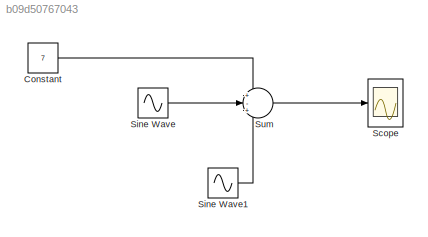
MODEL slx_b09d50767043
KIND model
CONFIG AbsTol = auto
CONFIG EnableMultiTasking = off
CONFIG FixedStep = 0.001
CONFIG MaxStep = auto
CONFIG MinStep = auto
CONFIG RelTol = 1e-3
CONFIG SampleTimeConstraint = Unconstrained
CONFIG SolverName = FixedStepAuto
CONFIG StartTime = 0.0
CONFIG StopTime = 10
BLOCK [Constant] Constant
  Value = 7
BLOCK [Scope] Scope
  Floating = off
  NumInputPorts = 1
  ScopeSpecificationString = Simulink.scopes.TimeScopeBlockCfg('CurrentConfiguration', extmgr.ConfigurationSet(extmgr.Configuration('Core','General UI',true),extmgr.Configuration('Core','Source UI',true),extmgr.Configuration('Sources','WiredSimulink',true),extmgr.Configuration('Visuals','Time Domain',true,'SerializedDisplays',{struct('MinYLimReal','-9.43319','MaxYLimReal','22.92415','YLabelReal','','MinYLimMag','0.00000','Max...<+1543ch>
BLOCK [Sin] Sine Wave
  Amplitude = 10
  Frequency = 40
  Phase = pi/6
  SampleTime = 0
BLOCK [Sin] Sine Wave1
  Amplitude = 4
  Frequency = 60
  SampleTime = 0
BLOCK [Sum] Sum
  Inputs = +-+
LINE Constant:1 -> Sum:1
LINE Sine Wave1:1 -> Sum:3
LINE Sine Wave:1 -> Sum:2
LINE Sum:1 -> Scope:1
